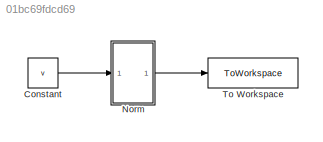
MODEL slx_01bc69fdcd69
KIND model
CONFIG AbsTol = auto
CONFIG EnableMultiTasking = off
CONFIG FixedStep = auto
CONFIG MaxStep = auto
CONFIG MinStep = auto
CONFIG RelTol = 1e-3
CONFIG SampleTimeConstraint = Unconstrained
CONFIG SolverName = VariableStepAuto
CONFIG StartTime = 0.0
CONFIG StopTime = 10.0
BLOCK [Constant] Constant
  Value = v
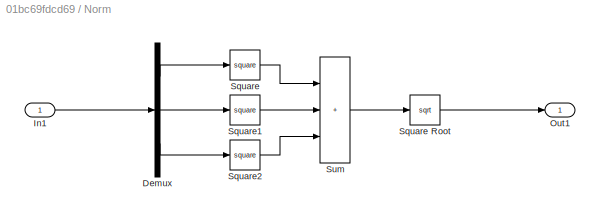
BLOCK [SubSystem] Norm
BLOCK [Demux] Norm/Demux
  Outputs = 3
BLOCK [Inport] Norm/In1
BLOCK [Outport] Norm/Out1
BLOCK [Math] Norm/Square
  Operator = square
BLOCK [Sqrt] Norm/Square Root
BLOCK [Math] Norm/Square1
  Operator = square
BLOCK [Math] Norm/Square2
  Operator = square
BLOCK [Sum] Norm/Sum
  IconShape = rectangular
  Inputs = +++
BLOCK [ToWorkspace] To Workspace
  FixptAsFi = on
  MaxDataPoints = inf
  SampleTime = -1
  SaveFormat = Timeseries
  VariableName = norm
LINE Constant:1 -> Norm:1
LINE Norm/Demux:1 -> Norm/Square:1
LINE Norm/Demux:2 -> Norm/Square1:1
LINE Norm/Demux:3 -> Norm/Square2:1
LINE Norm/In1:1 -> Norm/Demux:1
LINE Norm/Square Root:1 -> Norm/Out1:1
LINE Norm/Square1:1 -> Norm/Sum:2
LINE Norm/Square2:1 -> Norm/Sum:3
LINE Norm/Square:1 -> Norm/Sum:1
LINE Norm/Sum:1 -> Norm/Square Root:1
LINE Norm:1 -> To Workspace:1
